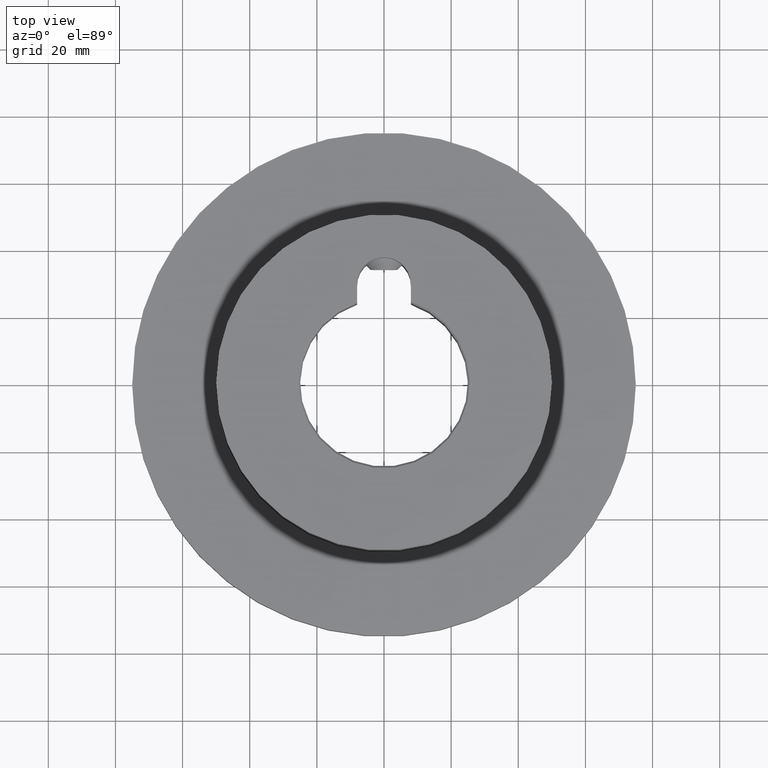
[diagram: clean part render]
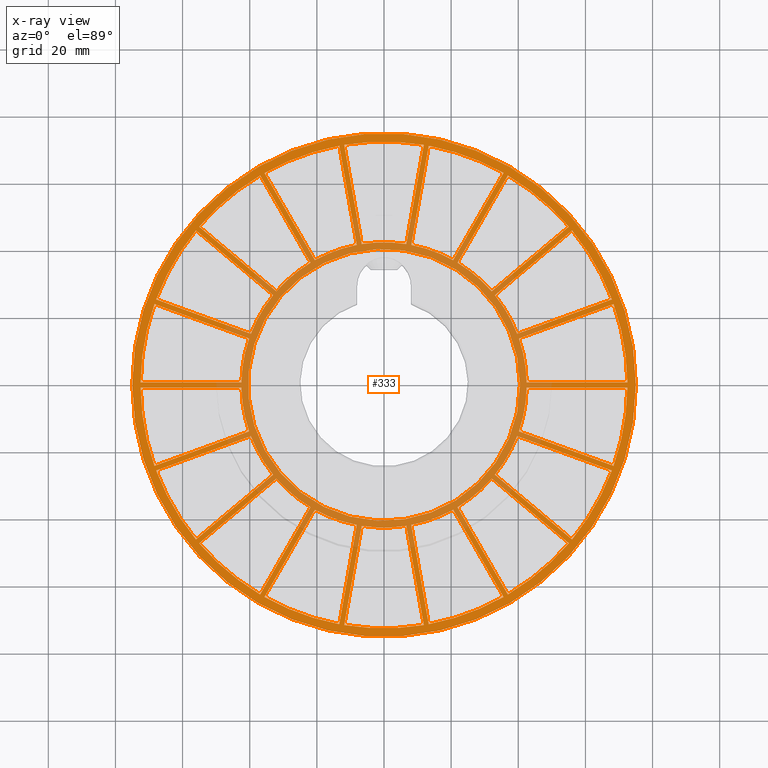
[diagram: x-ray — body ghosted, one internal face saturated and labeled with its STEP entity id]
A machine part, top view, then the same camera in x-ray: the body is ghosted and one INTERNAL B-rep face — a face not visible from any outside direction — is saturated and labeled: STEP entity #333.
In plain terms, the highlighted planar face has unit normal (0, 0, 1).
Its self-contained STEP definition (entity closure, byte-faithful):
#333 = ADVANCED_FACE( '', ( #550, #551, #552, #553, #554, #555, #556, #557, #558, #559, #560, #561, #562, #563, #564, #565, #566, #567, #568, #569 ), #570, .T. );
#550 = FACE_BOUND( '', #822, .T. );
#551 = FACE_BOUND( '', #823, .T. );
#552 = FACE_BOUND( '', #824, .T. );
#553 = FACE_BOUND( '', #825, .T. );
#554 = FACE_BOUND( '', #826, .T. );
#555 = FACE_BOUND( '', #827, .T. );
#556 = FACE_BOUND( '', #828, .T. );
#557 = FACE_BOUND( '', #829, .T. );
#558 = FACE_BOUND( '', #830, .T. );
#559 = FACE_OUTER_BOUND( '', #831, .T. );
#560 = FACE_BOUND( '', #832, .T. );
#561 = FACE_BOUND( '', #833, .T. );
#562 = FACE_BOUND( '', #834, .T. );
#563 = FACE_BOUND( '', #835, .T. );
#564 = FACE_BOUND( '', #836, .T. );
#565 = FACE_BOUND( '', #837, .T. );
#566 = FACE_BOUND( '', #838, .T. );
#567 = FACE_BOUND( '', #839, .T. );
#568 = FACE_BOUND( '', #840, .T. );
#569 = FACE_BOUND( '', #841, .T. );
#570 = PLANE( '', #842 );
#822 = EDGE_LOOP( '', ( #1215, #1216, #1217, #1218 ) );
#823 = EDGE_LOOP( '', ( #1219, #1220, #1221, #1222 ) );
#824 = EDGE_LOOP( '', ( #1223, #1224, #1225, #1226 ) );
#825 = EDGE_LOOP( '', ( #1227, #1228, #1229, #1230 ) );
#826 = EDGE_LOOP( '', ( #1231, #1232, #1233, #1234 ) );
#827 = EDGE_LOOP( '', ( #1235, #1236, #1237, #1238 ) );
#828 = EDGE_LOOP( '', ( #1239, #1240, #1241, #1242 ) );
#829 = EDGE_LOOP( '', ( #1243, #1244, #1245, #1246 ) );
#830 = EDGE_LOOP( '', ( #1247, #1248, #1249, #1250 ) );
#831 = EDGE_LOOP( '', ( #1251 ) );
#832 = EDGE_LOOP( '', ( #1252 ) );
#833 = EDGE_LOOP( '', ( #1253, #1254, #1255, #1256 ) );
#834 = EDGE_LOOP( '', ( #1257, #1258, #1259, #1260 ) );
#835 = EDGE_LOOP( '', ( #1261, #1262, #1263, #1264 ) );
#836 = EDGE_LOOP( '', ( #1265, #1266, #1267, #1268 ) );
#837 = EDGE_LOOP( '', ( #1269, #1270, #1271, #1272 ) );
#838 = EDGE_LOOP( '', ( #1273, #1274, #1275, #1276 ) );
#839 = EDGE_LOOP( '', ( #1277, #1278, #1279, #1280 ) );
#840 = EDGE_LOOP( '', ( #1281, #1282, #1283, #1284 ) );
#841 = EDGE_LOOP( '', ( #1285, #1286, #1287, #1288 ) );
#842 = AXIS2_PLACEMENT_3D( '', #1289, #1290, #1291 );
#1215 = ORIENTED_EDGE( '', *, *, #2010, .T. );
#1216 = ORIENTED_EDGE( '', *, *, #2011, .T. );
#1217 = ORIENTED_EDGE( '', *, *, #2012, .T. );
#1218 = ORIENTED_EDGE( '', *, *, #2013, .T. );
#1219 = ORIENTED_EDGE( '', *, *, #2014, .T. );
#1220 = ORIENTED_EDGE( '', *, *, #2015, .T. );
#1221 = ORIENTED_EDGE( '', *, *, #2016, .T. );
#1222 = ORIENTED_EDGE( '', *, *, #2017, .T. );
#1223 = ORIENTED_EDGE( '', *, *, #2018, .T. );
#1224 = ORIENTED_EDGE( '', *, *, #2019, .T. );
#1225 = ORIENTED_EDGE( '', *, *, #2020, .T. );
#1226 = ORIENTED_EDGE( '', *, *, #2021, .T. );
#1227 = ORIENTED_EDGE( '', *, *, #2022, .T. );
#1228 = ORIENTED_EDGE( '', *, *, #2023, .T. );
#1229 = ORIENTED_EDGE( '', *, *, #2024, .T. );
#1230 = ORIENTED_EDGE( '', *, *, #2025, .T. );
#1231 = ORIENTED_EDGE( '', *, *, #2026, .T. );
#1232 = ORIENTED_EDGE( '', *, *, #2027, .T. );
#1233 = ORIENTED_EDGE( '', *, *, #2028, .T. );
#1234 = ORIENTED_EDGE( '', *, *, #2029, .T. );
#1235 = ORIENTED_EDGE( '', *, *, #2030, .T. );
#1236 = ORIENTED_EDGE( '', *, *, #2031, .T. );
#1237 = ORIENTED_EDGE( '', *, *, #2032, .T. );
#1238 = ORIENTED_EDGE( '', *, *, #2033, .T. );
#1239 = ORIENTED_EDGE( '', *, *, #2034, .T. );
#1240 = ORIENTED_EDGE( '', *, *, #2035, .T. );
#1241 = ORIENTED_EDGE( '', *, *, #2036, .T. );
#1242 = ORIENTED_EDGE( '', *, *, #2037, .T. );
#1243 = ORIENTED_EDGE( '', *, *, #2038, .T. );
#1244 = ORIENTED_EDGE( '', *, *, #2039, .T. );
#1245 = ORIENTED_EDGE( '', *, *, #2040, .T. );
#1246 = ORIENTED_EDGE( '', *, *, #2041, .T. );
#1247 = ORIENTED_EDGE( '', *, *, #2042, .T. );
#1248 = ORIENTED_EDGE( '', *, *, #2043, .T. );
#1249 = ORIENTED_EDGE( '', *, *, #2044, .T. );
#1250 = ORIENTED_EDGE( '', *, *, #2045, .T. );
#1251 = ORIENTED_EDGE( '', *, *, #2004, .T. );
#1252 = ORIENTED_EDGE( '', *, *, #2046, .F. );
#1253 = ORIENTED_EDGE( '', *, *, #2047, .T. );
#1254 = ORIENTED_EDGE( '', *, *, #2048, .T. );
#1255 = ORIENTED_EDGE( '', *, *, #2049, .T. );
#1256 = ORIENTED_EDGE( '', *, *, #2050, .T. );
#1257 = ORIENTED_EDGE( '', *, *, #2051, .T. );
#1258 = ORIENTED_EDGE( '', *, *, #2052, .T. );
#1259 = ORIENTED_EDGE( '', *, *, #2053, .T. );
#1260 = ORIENTED_EDGE( '', *, *, #2054, .T. );
#1261 = ORIENTED_EDGE( '', *, *, #2055, .T. );
#1262 = ORIENTED_EDGE( '', *, *, #2056, .T. );
#1263 = ORIENTED_EDGE( '', *, *, #2057, .T. );
#1264 = ORIENTED_EDGE( '', *, *, #2058, .T. );
#1265 = ORIENTED_EDGE( '', *, *, #2059, .T. );
#1266 = ORIENTED_EDGE( '', *, *, #2060, .T. );
#1267 = ORIENTED_EDGE( '', *, *, #2061, .T. );
#1268 = ORIENTED_EDGE( '', *, *, #2062, .T. );
#1269 = ORIENTED_EDGE( '', *, *, #2063, .T. );
#1270 = ORIENTED_EDGE( '', *, *, #2064, .T. );
#1271 = ORIENTED_EDGE( '', *, *, #2065, .T. );
#1272 = ORIENTED_EDGE( '', *, *, #2066, .T. );
#1273 = ORIENTED_EDGE( '', *, *, #2067, .T. );
#1274 = ORIENTED_EDGE( '', *, *, #2068, .T. );
#1275 = ORIENTED_EDGE( '', *, *, #2069, .T. );
#1276 = ORIENTED_EDGE( '', *, *, #2070, .T. );
#1277 = ORIENTED_EDGE( '', *, *, #2071, .T. );
#1278 = ORIENTED_EDGE( '', *, *, #2072, .T. );
#1279 = ORIENTED_EDGE( '', *, *, #2073, .T. );
#1280 = ORIENTED_EDGE( '', *, *, #2074, .T. );
#1281 = ORIENTED_EDGE( '', *, *, #2075, .T. );
#1282 = ORIENTED_EDGE( '', *, *, #2076, .T. );
#1283 = ORIENTED_EDGE( '', *, *, #2077, .T. );
#1284 = ORIENTED_EDGE( '', *, *, #2078, .T. );
#1285 = ORIENTED_EDGE( '', *, *, #2007, .T. );
#1286 = ORIENTED_EDGE( '', *, *, #2079, .T. );
#1287 = ORIENTED_EDGE( '', *, *, #2080, .T. );
#1288 = ORIENTED_EDGE( '', *, *, #2009, .T. );
#1289 = CARTESIAN_POINT( '', ( 1.38777878078145E-014, 0.000000000000000, 8.00000000000000 ) );
#1290 = DIRECTION( '', ( 0.000000000000000, 0.000000000000000, 1.00000000000000 ) );
#1291 = DIRECTION( '', ( 1.00000000000000, 0.000000000000000, 0.000000000000000 ) );
#2004 = EDGE_CURVE( '', #2377, #2377, #2378, .T. );
#2007 = EDGE_CURVE( '', #2379, #2381, #2383, .T. );
#2009 = EDGE_CURVE( '', #2384, #2379, #2386, .T. );
#2010 = EDGE_CURVE( '', #2387, #2388, #2389, .T. );
#2011 = EDGE_CURVE( '', #2388, #2390, #2391, .F. );
#2012 = EDGE_CURVE( '', #2390, #2392, #2393, .T. );
#2013 = EDGE_CURVE( '', #2392, #2387, #2394, .T. );
#2014 = EDGE_CURVE( '', #2395, #2396, #2397, .T. );
#2015 = EDGE_CURVE( '', #2396, #2398, #2399, .F. );
#2016 = EDGE_CURVE( '', #2398, #2400, #2401, .T. );
#2017 = EDGE_CURVE( '', #2400, #2395, #2402, .T. );
#2018 = EDGE_CURVE( '', #2403, #2404, #2405, .T. );
#2019 = EDGE_CURVE( '', #2404, #2406, #2407, .F. );
#2020 = EDGE_CURVE( '', #2406, #2408, #2409, .T. );
#2021 = EDGE_CURVE( '', #2408, #2403, #2410, .T. );
#2022 = EDGE_CURVE( '', #2411, #2412, #2413, .T. );
#2023 = EDGE_CURVE( '', #2412, #2414, #2415, .F. );
#2024 = EDGE_CURVE( '', #2414, #2416, #2417, .T. );
#2025 = EDGE_CURVE( '', #2416, #2411, #2418, .T. );
#2026 = EDGE_CURVE( '', #2419, #2420, #2421, .T. );
#2027 = EDGE_CURVE( '', #2420, #2422, #2423, .F. );
#2028 = EDGE_CURVE( '', #2422, #2424, #2425, .T. );
#2029 = EDGE_CURVE( '', #2424, #2419, #2426, .T. );
#2030 = EDGE_CURVE( '', #2427, #2428, #2429, .T. );
#2031 = EDGE_CURVE( '', #2428, #2430, #2431, .F. );
#2032 = EDGE_CURVE( '', #2430, #2432, #2433, .T. );
#2033 = EDGE_CURVE( '', #2432, #2427, #2434, .T. );
#2034 = EDGE_CURVE( '', #2435, #2436, #2437, .T. );
#2035 = EDGE_CURVE( '', #2436, #2438, #2439, .F. );
#2036 = EDGE_CURVE( '', #2438, #2440, #2441, .T. );
#2037 = EDGE_CURVE( '', #2440, #2435, #2442, .T. );
#2038 = EDGE_CURVE( '', #2443, #2444, #2445, .T. );
#2039 = EDGE_CURVE( '', #2444, #2446, #2447, .F. );
#2040 = EDGE_CURVE( '', #2446, #2448, #2449, .T. );
#2041 = EDGE_CURVE( '', #2448, #2443, #2450, .T. );
#2042 = EDGE_CURVE( '', #2451, #2452, #2453, .T. );
#2043 = EDGE_CURVE( '', #2452, #2454, #2455, .F. );
#2044 = EDGE_CURVE( '', #2454, #2456, #2457, .T. );
#2045 = EDGE_CURVE( '', #2456, #2451, #2458, .T. );
#2046 = EDGE_CURVE( '', #2459, #2459, #2460, .T. );
#2047 = EDGE_CURVE( '', #2461, #2462, #2463, .T. );
#2048 = EDGE_CURVE( '', #2462, #2464, #2465, .F. );
#2049 = EDGE_CURVE( '', #2464, #2466, #2467, .T. );
#2050 = EDGE_CURVE( '', #2466, #2461, #2468, .T. );
#2051 = EDGE_CURVE( '', #2469, #2470, #2471, .T. );
#2052 = EDGE_CURVE( '', #2470, #2472, #2473, .F. );
#2053 = EDGE_CURVE( '', #2472, #2474, #2475, .T. );
#2054 = EDGE_CURVE( '', #2474, #2469, #2476, .T. );
#2055 = EDGE_CURVE( '', #2477, #2478, #2479, .T. );
#2056 = EDGE_CURVE( '', #2478, #2480, #2481, .F. );
#2057 = EDGE_CURVE( '', #2480, #2482, #2483, .T. );
#2058 = EDGE_CURVE( '', #2482, #2477, #2484, .T. );
#2059 = EDGE_CURVE( '', #2485, #2486, #2487, .T. );
#2060 = EDGE_CURVE( '', #2486, #2488, #2489, .F. );
#2061 = EDGE_CURVE( '', #2488, #2490, #2491, .T. );
#2062 = EDGE_CURVE( '', #2490, #2485, #2492, .T. );
#2063 = EDGE_CURVE( '', #2493, #2494, #2495, .T. );
#2064 = EDGE_CURVE( '', #2494, #2496, #2497, .F. );
#2065 = EDGE_CURVE( '', #2496, #2498, #2499, .T. );
#2066 = EDGE_CURVE( '', #2498, #2493, #2500, .T. );
#2067 = EDGE_CURVE( '', #2501, #2502, #2503, .T. );
#2068 = EDGE_CURVE( '', #2502, #2504, #2505, .F. );
#2069 = EDGE_CURVE( '', #2504, #2506, #2507, .T. );
#2070 = EDGE_CURVE( '', #2506, #2501, #2508, .T. );
#2071 = EDGE_CURVE( '', #2509, #2510, #2511, .T. );
#2072 = EDGE_CURVE( '', #2510, #2512, #2513, .F. );
#2073 = EDGE_CURVE( '', #2512, #2514, #2515, .T. );
#2074 = EDGE_CURVE( '', #2514, #2509, #2516, .T. );
#2075 = EDGE_CURVE( '', #2517, #2518, #2519, .T. );
#2076 = EDGE_CURVE( '', #2518, #2520, #2521, .F. );
#2077 = EDGE_CURVE( '', #2520, #2522, #2523, .T. );
#2078 = EDGE_CURVE( '', #2522, #2517, #2524, .T. );
#2079 = EDGE_CURVE( '', #2381, #2525, #2526, .F. );
#2080 = EDGE_CURVE( '', #2525, #2384, #2527, .T. );
#2377 = VERTEX_POINT( '', #3044 );
#2378 = CIRCLE( '', #3045, 75.0000000000000 );
#2379 = VERTEX_POINT( '', #3046 );
#2381 = VERTEX_POINT( '', #3049 );
#2383 = LINE( '', #3052, #3053 );
#2384 = VERTEX_POINT( '', #3054 );
#2386 = CIRCLE( '', #3057, 42.5000000000000 );
#2387 = VERTEX_POINT( '', #3058 );
#2388 = VERTEX_POINT( '', #3059 );
#2389 = LINE( '', #3060, #3061 );
#2390 = VERTEX_POINT( '', #3062 );
#2391 = CIRCLE( '', #3063, 72.5000000000000 );
#2392 = VERTEX_POINT( '', #3064 );
#2393 = LINE( '', #3065, #3066 );
#2394 = CIRCLE( '', #3067, 42.5000000000000 );
#2395 = VERTEX_POINT( '', #3068 );
#2396 = VERTEX_POINT( '', #3069 );
#2397 = LINE( '', #3070, #3071 );
#2398 = VERTEX_POINT( '', #3072 );
#2399 = CIRCLE( '', #3073, 72.5000000000000 );
#2400 = VERTEX_POINT( '', #3074 );
#2401 = LINE( '', #3075, #3076 );
#2402 = CIRCLE( '', #3077, 42.5000000000000 );
#2403 = VERTEX_POINT( '', #3078 );
#2404 = VERTEX_POINT( '', #3079 );
#2405 = LINE( '', #3080, #3081 );
#2406 = VERTEX_POINT( '', #3082 );
#2407 = CIRCLE( '', #3083, 72.5000000000000 );
#2408 = VERTEX_POINT( '', #3084 );
#2409 = LINE( '', #3085, #3086 );
#2410 = CIRCLE( '', #3087, 42.5000000000000 );
#2411 = VERTEX_POINT( '', #3088 );
#2412 = VERTEX_POINT( '', #3089 );
#2413 = LINE( '', #3090, #3091 );
#2414 = VERTEX_POINT( '', #3092 );
#2415 = CIRCLE( '', #3093, 72.5000000000000 );
#2416 = VERTEX_POINT( '', #3094 );
#2417 = LINE( '', #3095, #3096 );
#2418 = CIRCLE( '', #3097, 42.5000000000000 );
#2419 = VERTEX_POINT( '', #3098 );
#2420 = VERTEX_POINT( '', #3099 );
#2421 = LINE( '', #3100, #3101 );
#2422 = VERTEX_POINT( '', #3102 );
#2423 = CIRCLE( '', #3103, 72.5000000000000 );
#2424 = VERTEX_POINT( '', #3104 );
#2425 = LINE( '', #3105, #3106 );
#2426 = CIRCLE( '', #3107, 42.5000000000000 );
#2427 = VERTEX_POINT( '', #3108 );
#2428 = VERTEX_POINT( '', #3109 );
#2429 = LINE( '', #3110, #3111 );
#2430 = VERTEX_POINT( '', #3112 );
#2431 = CIRCLE( '', #3113, 72.5000000000000 );
#2432 = VERTEX_POINT( '', #3114 );
#2433 = LINE( '', #3115, #3116 );
#2434 = CIRCLE( '', #3117, 42.5000000000000 );
#2435 = VERTEX_POINT( '', #3118 );
#2436 = VERTEX_POINT( '', #3119 );
#2437 = LINE( '', #3120, #3121 );
#2438 = VERTEX_POINT( '', #3122 );
#2439 = CIRCLE( '', #3123, 72.5000000000000 );
#2440 = VERTEX_POINT( '', #3124 );
#2441 = LINE( '', #3125, #3126 );
#2442 = CIRCLE( '', #3127, 42.5000000000000 );
#2443 = VERTEX_POINT( '', #3128 );
#2444 = VERTEX_POINT( '', #3129 );
#2445 = LINE( '', #3130, #3131 );
#2446 = VERTEX_POINT( '', #3132 );
#2447 = CIRCLE( '', #3133, 72.5000000000000 );
#2448 = VERTEX_POINT( '', #3134 );
#2449 = LINE( '', #3135, #3136 );
#2450 = CIRCLE( '', #3137, 42.5000000000000 );
#2451 = VERTEX_POINT( '', #3138 );
#2452 = VERTEX_POINT( '', #3139 );
#2453 = LINE( '', #3140, #3141 );
#2454 = VERTEX_POINT( '', #3142 );
#2455 = CIRCLE( '', #3143, 72.5000000000000 );
#2456 = VERTEX_POINT( '', #3144 );
#2457 = LINE( '', #3145, #3146 );
#2458 = CIRCLE( '', #3147, 42.5000000000000 );
#2459 = VERTEX_POINT( '', #3148 );
#2460 = CIRCLE( '', #3149, 40.5000000000000 );
#2461 = VERTEX_POINT( '', #3150 );
#2462 = VERTEX_POINT( '', #3151 );
#2463 = LINE( '', #3152, #3153 );
#2464 = VERTEX_POINT( '', #3154 );
#2465 = CIRCLE( '', #3155, 72.5000000000000 );
#2466 = VERTEX_POINT( '', #3156 );
#2467 = LINE( '', #3157, #3158 );
#2468 = CIRCLE( '', #3159, 42.5000000000000 );
#2469 = VERTEX_POINT( '', #3160 );
#2470 = VERTEX_POINT( '', #3161 );
#2471 = LINE( '', #3162, #3163 );
#2472 = VERTEX_POINT( '', #3164 );
#2473 = CIRCLE( '', #3165, 72.5000000000000 );
#2474 = VERTEX_POINT( '', #3166 );
#2475 = LINE( '', #3167, #3168 );
#2476 = CIRCLE( '', #3169, 42.5000000000000 );
#2477 = VERTEX_POINT( '', #3170 );
#2478 = VERTEX_POINT( '', #3171 );
#2479 = LINE( '', #3172, #3173 );
#2480 = VERTEX_POINT( '', #3174 );
#2481 = CIRCLE( '', #3175, 72.5000000000000 );
#2482 = VERTEX_POINT( '', #3176 );
#2483 = LINE( '', #3177, #3178 );
#2484 = CIRCLE( '', #3179, 42.5000000000000 );
#2485 = VERTEX_POINT( '', #3180 );
#2486 = VERTEX_POINT( '', #3181 );
#2487 = LINE( '', #3182, #3183 );
#2488 = VERTEX_POINT( '', #3184 );
#2489 = CIRCLE( '', #3185, 72.5000000000000 );
#2490 = VERTEX_POINT( '', #3186 );
#2491 = LINE( '', #3187, #3188 );
#2492 = CIRCLE( '', #3189, 42.5000000000000 );
#2493 = VERTEX_POINT( '', #3190 );
#2494 = VERTEX_POINT( '', #3191 );
#2495 = LINE( '', #3192, #3193 );
#2496 = VERTEX_POINT( '', #3194 );
#2497 = CIRCLE( '', #3195, 72.5000000000000 );
#2498 = VERTEX_POINT( '', #3196 );
#2499 = LINE( '', #3197, #3198 );
#2500 = CIRCLE( '', #3199, 42.5000000000000 );
#2501 = VERTEX_POINT( '', #3200 );
#2502 = VERTEX_POINT( '', #3201 );
#2503 = LINE( '', #3202, #3203 );
#2504 = VERTEX_POINT( '', #3204 );
#2505 = CIRCLE( '', #3205, 72.5000000000000 );
#2506 = VERTEX_POINT( '', #3206 );
#2507 = LINE( '', #3207, #3208 );
#2508 = CIRCLE( '', #3209, 42.5000000000000 );
#2509 = VERTEX_POINT( '', #3210 );
#2510 = VERTEX_POINT( '', #3211 );
#2511 = LINE( '', #3212, #3213 );
#2512 = VERTEX_POINT( '', #3214 );
#2513 = CIRCLE( '', #3215, 72.5000000000000 );
#2514 = VERTEX_POINT( '', #3216 );
#2515 = LINE( '', #3217, #3218 );
#2516 = CIRCLE( '', #3219, 42.5000000000000 );
#2517 = VERTEX_POINT( '', #3220 );
#2518 = VERTEX_POINT( '', #3221 );
#2519 = LINE( '', #3222, #3223 );
#2520 = VERTEX_POINT( '', #3224 );
#2521 = CIRCLE( '', #3225, 72.5000000000000 );
#2522 = VERTEX_POINT( '', #3226 );
#2523 = LINE( '', #3227, #3228 );
#2524 = CIRCLE( '', #3229, 42.5000000000000 );
#2525 = VERTEX_POINT( '', #3230 );
#2526 = CIRCLE( '', #3231, 72.5000000000000 );
#2527 = LINE( '', #3232, #3233 );
#3044 = CARTESIAN_POINT( '', ( 75.0000000000000, 0.000000000000000, 8.00000000000000 ) );
#3045 = AXIS2_PLACEMENT_3D( '', #3691, #3692, #3693 );
#3046 = CARTESIAN_POINT( '', ( 42.4933818376462, -0.750000000000002, 8.00000000000001 ) );
#3049 = CARTESIAN_POINT( '', ( 72.4961205858630, -0.749999999999990, 8.00000000000000 ) );
#3052 = CARTESIAN_POINT( '', ( 1.39610545346613E-014, -0.749999999999998, 8.00000000000000 ) );
#3053 = VECTOR( '', #3696, 1000.00000000000 );
#3054 = CARTESIAN_POINT( '', ( 40.1872324525683, -13.8288230809147, 8.00000000000001 ) );
#3057 = AXIS2_PLACEMENT_3D( '', #3698, #3699, #3700 );
#3058 = CARTESIAN_POINT( '', ( 39.6742022375798, -15.2383620120936, 8.00000000000001 ) );
#3059 = CARTESIAN_POINT( '', ( 67.8675544426466, -25.4999030189213, 8.00000000000000 ) );
#3060 = CARTESIAN_POINT( '', ( -0.256515107494240, -0.704769465589437, 8.00000000000000 ) );
#3061 = VECTOR( '', #3701, 1000.00000000000 );
#3062 = CARTESIAN_POINT( '', ( 56.0173410297487, -46.0250747305948, 8.00000000000001 ) );
#3063 = AXIS2_PLACEMENT_3D( '', #3702, #3703, #3704 );
#3064 = CARTESIAN_POINT( '', ( 33.0339097333267, -26.7396860065788, 8.00000000000001 ) );
#3065 = CARTESIAN_POINT( '', ( 0.482090707264914, 0.574533332339229, 8.00000000000000 ) );
#3066 = VECTOR( '', #3705, 1000.00000000000 );
#3067 = AXIS2_PLACEMENT_3D( '', #3706, #3707, #3708 );
#3068 = CARTESIAN_POINT( '', ( 20.5971718659848, -37.1753481641139, 8.00000000000001 ) );
#3069 = CARTESIAN_POINT( '', ( 35.5985412400932, -63.1584821031774, 8.00000000000000 ) );
#3070 = CARTESIAN_POINT( '', ( -0.649519052838328, -0.375000000000007, 8.00000000000000 ) );
#3071 = VECTOR( '', #3709, 1000.00000000000 );
#3072 = CARTESIAN_POINT( '', ( 13.3274250424163, -71.2645054830157, 8.00000000000001 ) );
#3073 = AXIS2_PLACEMENT_3D( '', #3710, #3711, #3712 );
#3074 = CARTESIAN_POINT( '', ( 8.11750413377144, -41.7175757521719, 8.00000000000001 ) );
#3075 = CARTESIAN_POINT( '', ( 0.738605814759155, 0.130236133250195, 8.00000000000000 ) );
#3076 = VECTOR( '', #3713, 1000.00000000000 );
#3077 = AXIS2_PLACEMENT_3D( '', #3714, #3715, #3716 );
#3078 = CARTESIAN_POINT( '', ( -8.11750413377148, -41.7175757521719, 8.00000000000001 ) );
#3079 = CARTESIAN_POINT( '', ( -13.3274250424163, -71.2645054830156, 8.00000000000000 ) );
#3080 = CARTESIAN_POINT( '', ( -0.738605814759154, 0.130236133250200, 8.00000000000000 ) );
#3081 = VECTOR( '', #3717, 1000.00000000000 );
#3082 = CARTESIAN_POINT( '', ( -35.5985412400932, -63.1584821031774, 8.00000000000001 ) );
#3083 = AXIS2_PLACEMENT_3D( '', #3718, #3719, #3720 );
#3084 = CARTESIAN_POINT( '', ( -20.5971718659848, -37.1753481641139, 8.00000000000001 ) );
#3085 = CARTESIAN_POINT( '', ( 0.649519052838334, -0.374999999999995, 8.00000000000000 ) );
#3086 = VECTOR( '', #3721, 1000.00000000000 );
#3087 = AXIS2_PLACEMENT_3D( '', #3722, #3723, #3724 );
#3088 = CARTESIAN_POINT( '', ( -33.0339097333267, -26.7396860065788, 8.00000000000001 ) );
#3089 = CARTESIAN_POINT( '', ( -56.0173410297486, -46.0250747305948, 8.00000000000000 ) );
#3090 = CARTESIAN_POINT( '', ( -0.482090707264896, 0.574533332339239, 8.00000000000000 ) );
#3091 = VECTOR( '', #3725, 1000.00000000000 );
#3092 = CARTESIAN_POINT( '', ( -67.8675544426467, -25.4999030189213, 8.00000000000001 ) );
#3093 = AXIS2_PLACEMENT_3D( '', #3726, #3727, #3728 );
#3094 = CARTESIAN_POINT( '', ( -39.6742022375798, -15.2383620120936, 8.00000000000001 ) );
#3095 = CARTESIAN_POINT( '', ( 0.256515107494262, -0.704769465589422, 8.00000000000000 ) );
#3096 = VECTOR( '', #3729, 1000.00000000000 );
#3097 = AXIS2_PLACEMENT_3D( '', #3730, #3731, #3732 );
#3098 = CARTESIAN_POINT( '', ( -42.4933818376462, 0.750000000000015, 8.00000000000001 ) );
#3099 = CARTESIAN_POINT( '', ( -72.4961205858630, 0.750000000000014, 8.00000000000000 ) );
#3100 = CARTESIAN_POINT( '', ( 1.40443212615082E-014, 0.749999999999998, 8.00000000000000 ) );
#3101 = VECTOR( '', #3733, 1000.00000000000 );
#3102 = CARTESIAN_POINT( '', ( -68.3805846576352, 24.0903640877424, 8.00000000000001 ) );
#3103 = AXIS2_PLACEMENT_3D( '', #3734, #3735, #3736 );
#3104 = CARTESIAN_POINT( '', ( -40.1872324525683, 13.8288230809147, 8.00000000000001 ) );
#3105 = CARTESIAN_POINT( '', ( -0.256515107494239, -0.704769465589435, 8.00000000000000 ) );
#3106 = VECTOR( '', #3737, 1000.00000000000 );
#3107 = AXIS2_PLACEMENT_3D( '', #3738, #3739, #3740 );
#3108 = CARTESIAN_POINT( '', ( -32.0697283187969, 27.8887526712573, 8.00000000000001 ) );
#3109 = CARTESIAN_POINT( '', ( -55.0531596152188, 47.1741413952733, 8.00000000000000 ) );
#3110 = CARTESIAN_POINT( '', ( 0.482090707264912, 0.574533332339226, 8.00000000000000 ) );
#3111 = VECTOR( '', #3741, 1000.00000000000 );
#3112 = CARTESIAN_POINT( '', ( -36.8975793457699, 62.4084821031774, 8.00000000000001 ) );
#3113 = AXIS2_PLACEMENT_3D( '', #3742, #3743, #3744 );
#3114 = CARTESIAN_POINT( '', ( -21.8962099716614, 36.4253481641139, 8.00000000000001 ) );
#3115 = CARTESIAN_POINT( '', ( -0.649519052838334, -0.375000000000011, 8.00000000000000 ) );
#3116 = VECTOR( '', #3745, 1000.00000000000 );
#3117 = AXIS2_PLACEMENT_3D( '', #3746, #3747, #3748 );
#3118 = CARTESIAN_POINT( '', ( -6.64029250425313, 41.9780480186723, 8.00000000000001 ) );
#3119 = CARTESIAN_POINT( '', ( -11.8502134128980, 71.5249777495160, 8.00000000000000 ) );
#3120 = CARTESIAN_POINT( '', ( 0.738605814759156, 0.130236133250195, 8.00000000000000 ) );
#3121 = VECTOR( '', #3749, 1000.00000000000 );
#3122 = CARTESIAN_POINT( '', ( 11.8502134128980, 71.5249777495161, 8.00000000000001 ) );
#3123 = AXIS2_PLACEMENT_3D( '', #3750, #3751, #3752 );
#3124 = CARTESIAN_POINT( '', ( 6.64029250425315, 41.9780480186723, 8.00000000000001 ) );
#3125 = CARTESIAN_POINT( '', ( -0.738605814759157, 0.130236133250200, 8.00000000000000 ) );
#3126 = VECTOR( '', #3753, 1000.00000000000 );
#3127 = AXIS2_PLACEMENT_3D( '', #3754, #3755, #3756 );
#3128 = CARTESIAN_POINT( '', ( 21.8962099716614, 36.4253481641139, 8.00000000000001 ) );
#3129 = CARTESIAN_POINT( '', ( 36.8975793457698, 62.4084821031774, 8.00000000000000 ) );
#3130 = CARTESIAN_POINT( '', ( 0.649519052838334, -0.374999999999995, 8.00000000000000 ) );
#3131 = VECTOR( '', #3757, 1000.00000000000 );
#3132 = CARTESIAN_POINT( '', ( 55.0531596152189, 47.1741413952733, 8.00000000000001 ) );
#3133 = AXIS2_PLACEMENT_3D( '', #3758, #3759, #3760 );
#3134 = CARTESIAN_POINT( '', ( 32.0697283187969, 27.8887526712572, 8.00000000000001 ) );
#3135 = CARTESIAN_POINT( '', ( -0.482090707264900, 0.574533332339245, 8.00000000000000 ) );
#3136 = VECTOR( '', #3761, 1000.00000000000 );
#3137 = AXIS2_PLACEMENT_3D( '', #3762, #3763, #3764 );
#3138 = CARTESIAN_POINT( '', ( 40.1872324525683, 13.8288230809147, 8.00000000000001 ) );
#3139 = CARTESIAN_POINT( '', ( 68.3805846576351, 24.0903640877424, 8.00000000000000 ) );
#3140 = CARTESIAN_POINT( '', ( 0.256515107494263, -0.704769465589426, 8.00000000000000 ) );
#3141 = VECTOR( '', #3765, 1000.00000000000 );
#3142 = CARTESIAN_POINT( '', ( 72.4961205858631, 0.750000000000000, 8.00000000000001 ) );
#3143 = AXIS2_PLACEMENT_3D( '', #3766, #3767, #3768 );
#3144 = CARTESIAN_POINT( '', ( 42.4933818376462, 0.750000000000000, 8.00000000000001 ) );
#3145 = CARTESIAN_POINT( '', ( 1.38777878078145E-014, 0.750000000000000, 8.00000000000000 ) );
#3146 = VECTOR( '', #3769, 1000.00000000000 );
#3147 = AXIS2_PLACEMENT_3D( '', #3770, #3771, #3772 );
#3148 = CARTESIAN_POINT( '', ( 40.5000000000000, 0.000000000000000, 8.00000000000000 ) );
#3149 = AXIS2_PLACEMENT_3D( '', #3773, #3774, #3775 );
#3150 = CARTESIAN_POINT( '', ( 33.0339097333267, 26.7396860065788, 8.00000000000001 ) );
#3151 = CARTESIAN_POINT( '', ( 56.0173410297486, 46.0250747305948, 8.00000000000000 ) );
#3152 = CARTESIAN_POINT( '', ( 0.482090707264912, -0.574533332339226, 8.00000000000000 ) );
#3153 = VECTOR( '', #3776, 1000.00000000000 );
#3154 = CARTESIAN_POINT( '', ( 67.8675544426467, 25.4999030189213, 8.00000000000001 ) );
#3155 = AXIS2_PLACEMENT_3D( '', #3777, #3778, #3779 );
#3156 = CARTESIAN_POINT( '', ( 39.6742022375798, 15.2383620120936, 8.00000000000001 ) );
#3157 = CARTESIAN_POINT( '', ( -0.256515107494239, 0.704769465589435, 8.00000000000000 ) );
#3158 = VECTOR( '', #3780, 1000.00000000000 );
#3159 = AXIS2_PLACEMENT_3D( '', #3781, #3782, #3783 );
#3160 = CARTESIAN_POINT( '', ( 8.11750413377147, 41.7175757521719, 8.00000000000001 ) );
#3161 = CARTESIAN_POINT( '', ( 13.3274250424163, 71.2645054830156, 8.00000000000000 ) );
#3162 = CARTESIAN_POINT( '', ( 0.738605814759152, -0.130236133250195, 8.00000000000000 ) );
#3163 = VECTOR( '', #3784, 1000.00000000000 );
#3164 = CARTESIAN_POINT( '', ( 35.5985412400932, 63.1584821031774, 8.00000000000001 ) );
#3165 = AXIS2_PLACEMENT_3D( '', #3785, #3786, #3787 );
#3166 = CARTESIAN_POINT( '', ( 20.5971718659848, 37.1753481641139, 8.00000000000001 ) );
#3167 = CARTESIAN_POINT( '', ( -0.649519052838331, 0.375000000000009, 8.00000000000000 ) );
#3168 = VECTOR( '', #3788, 1000.00000000000 );
#3169 = AXIS2_PLACEMENT_3D( '', #3789, #3790, #3791 );
#3170 = CARTESIAN_POINT( '', ( -20.5971718659848, 37.1753481641139, 8.00000000000001 ) );
#3171 = CARTESIAN_POINT( '', ( -35.5985412400932, 63.1584821031774, 8.00000000000000 ) );
#3172 = CARTESIAN_POINT( '', ( 0.649519052838335, 0.374999999999995, 8.00000000000000 ) );
#3173 = VECTOR( '', #3792, 1000.00000000000 );
#3174 = CARTESIAN_POINT( '', ( -13.3274250424163, 71.2645054830157, 8.00000000000001 ) );
#3175 = AXIS2_PLACEMENT_3D( '', #3793, #3794, #3795 );
#3176 = CARTESIAN_POINT( '', ( -8.11750413377145, 41.7175757521719, 8.00000000000001 ) );
#3177 = CARTESIAN_POINT( '', ( -0.738605814759155, -0.130236133250200, 8.00000000000000 ) );
#3178 = VECTOR( '', #3796, 1000.00000000000 );
#3179 = AXIS2_PLACEMENT_3D( '', #3797, #3798, #3799 );
#3180 = CARTESIAN_POINT( '', ( -39.6742022375798, 15.2383620120936, 8.00000000000001 ) );
#3181 = CARTESIAN_POINT( '', ( -67.8675544426466, 25.4999030189213, 8.00000000000000 ) );
#3182 = CARTESIAN_POINT( '', ( 0.256515107494265, 0.704769465589430, 8.00000000000000 ) );
#3183 = VECTOR( '', #3800, 1000.00000000000 );
#3184 = CARTESIAN_POINT( '', ( -56.0173410297487, 46.0250747305948, 8.00000000000001 ) );
#3185 = AXIS2_PLACEMENT_3D( '', #3801, #3802, #3803 );
#3186 = CARTESIAN_POINT( '', ( -33.0339097333267, 26.7396860065788, 8.00000000000001 ) );
#3187 = CARTESIAN_POINT( '', ( -0.482090707264896, -0.574533332339239, 8.00000000000000 ) );
#3188 = VECTOR( '', #3804, 1000.00000000000 );
#3189 = AXIS2_PLACEMENT_3D( '', #3805, #3806, #3807 );
#3190 = CARTESIAN_POINT( '', ( -40.1872324525683, -13.8288230809147, 8.00000000000001 ) );
#3191 = CARTESIAN_POINT( '', ( -68.3805846576351, -24.0903640877424, 8.00000000000000 ) );
#3192 = CARTESIAN_POINT( '', ( -0.256515107494239, 0.704769465589435, 8.00000000000000 ) );
#3193 = VECTOR( '', #3808, 1000.00000000000 );
#3194 = CARTESIAN_POINT( '', ( -72.4961205858631, -0.749999999999991, 8.00000000000001 ) );
#3195 = AXIS2_PLACEMENT_3D( '', #3809, #3810, #3811 );
#3196 = CARTESIAN_POINT( '', ( -42.4933818376462, -0.749999999999995, 8.00000000000001 ) );
#3197 = CARTESIAN_POINT( '', ( 1.37859392978784E-014, -0.750000000000000, 8.00000000000000 ) );
#3198 = VECTOR( '', #3812, 1000.00000000000 );
#3199 = AXIS2_PLACEMENT_3D( '', #3813, #3814, #3815 );
#3200 = CARTESIAN_POINT( '', ( -21.8962099716614, -36.4253481641139, 8.00000000000001 ) );
#3201 = CARTESIAN_POINT( '', ( -36.8975793457698, -62.4084821031774, 8.00000000000000 ) );
#3202 = CARTESIAN_POINT( '', ( -0.649519052838328, 0.375000000000007, 8.00000000000000 ) );
#3203 = VECTOR( '', #3816, 1000.00000000000 );
#3204 = CARTESIAN_POINT( '', ( -55.0531596152189, -47.1741413952733, 8.00000000000001 ) );
#3205 = AXIS2_PLACEMENT_3D( '', #3817, #3818, #3819 );
#3206 = CARTESIAN_POINT( '', ( -32.0697283187969, -27.8887526712572, 8.00000000000001 ) );
#3207 = CARTESIAN_POINT( '', ( 0.482090707264914, -0.574533332339229, 8.00000000000000 ) );
#3208 = VECTOR( '', #3820, 1000.00000000000 );
#3209 = AXIS2_PLACEMENT_3D( '', #3821, #3822, #3823 );
#3210 = CARTESIAN_POINT( '', ( 6.64029250425313, -41.9780480186723, 8.00000000000001 ) );
#3211 = CARTESIAN_POINT( '', ( 11.8502134128980, -71.5249777495160, 8.00000000000000 ) );
#3212 = CARTESIAN_POINT( '', ( -0.738605814759156, -0.130236133250200, 8.00000000000000 ) );
#3213 = VECTOR( '', #3824, 1000.00000000000 );
#3214 = CARTESIAN_POINT( '', ( -11.8502134128980, -71.5249777495161, 8.00000000000001 ) );
#3215 = AXIS2_PLACEMENT_3D( '', #3825, #3826, #3827 );
#3216 = CARTESIAN_POINT( '', ( -6.64029250425314, -41.9780480186723, 8.00000000000001 ) );
#3217 = CARTESIAN_POINT( '', ( 0.738605814759157, -0.130236133250195, 8.00000000000000 ) );
#3218 = VECTOR( '', #3828, 1000.00000000000 );
#3219 = AXIS2_PLACEMENT_3D( '', #3829, #3830, #3831 );
#3220 = CARTESIAN_POINT( '', ( 32.0697283187969, -27.8887526712572, 8.00000000000001 ) );
#3221 = CARTESIAN_POINT( '', ( 55.0531596152188, -47.1741413952732, 8.00000000000000 ) );
#3222 = CARTESIAN_POINT( '', ( -0.482090707264891, -0.574533332339234, 8.00000000000000 ) );
#3223 = VECTOR( '', #3832, 1000.00000000000 );
#3224 = CARTESIAN_POINT( '', ( 36.8975793457699, -62.4084821031774, 8.00000000000001 ) );
#3225 = AXIS2_PLACEMENT_3D( '', #3833, #3834, #3835 );
#3226 = CARTESIAN_POINT( '', ( 21.8962099716614, -36.4253481641139, 8.00000000000001 ) );
#3227 = CARTESIAN_POINT( '', ( 0.649519052838331, 0.374999999999993, 8.00000000000000 ) );
#3228 = VECTOR( '', #3836, 1000.00000000000 );
#3229 = AXIS2_PLACEMENT_3D( '', #3837, #3838, #3839 );
#3230 = CARTESIAN_POINT( '', ( 68.3805846576352, -24.0903640877424, 8.00000000000001 ) );
#3231 = AXIS2_PLACEMENT_3D( '', #3840, #3841, #3842 );
#3232 = CARTESIAN_POINT( '', ( 0.256515107494264, 0.704769465589429, 8.00000000000000 ) );
#3233 = VECTOR( '', #3843, 1000.00000000000 );
#3691 = CARTESIAN_POINT( '', ( 1.38777878078145E-014, 0.000000000000000, 8.00000000000000 ) );
#3692 = DIRECTION( '', ( 0.000000000000000, 0.000000000000000, 1.00000000000000 ) );
#3693 = DIRECTION( '', ( 1.00000000000000, 0.000000000000000, 0.000000000000000 ) );
#3696 = DIRECTION( '', ( 1.00000000000000, 1.11022302462516E-016, -0.000000000000000 ) );
#3698 = CARTESIAN_POINT( '', ( 0.000000000000000, 0.000000000000000, 8.00000000000001 ) );
#3699 = DIRECTION( '', ( 0.000000000000000, 0.000000000000000, 1.00000000000000 ) );
#3700 = DIRECTION( '', ( 1.00000000000000, 0.000000000000000, -0.000000000000000 ) );
#3701 = DIRECTION( '', ( 0.939692620785908, -0.342020143325669, 0.000000000000000 ) );
#3702 = CARTESIAN_POINT( '', ( 0.000000000000000, 0.000000000000000, 8.00000000000001 ) );
#3703 = DIRECTION( '', ( 0.000000000000000, 0.000000000000000, 1.00000000000000 ) );
#3704 = DIRECTION( '', ( 1.00000000000000, 0.000000000000000, -0.000000000000000 ) );
#3705 = DIRECTION( '', ( -0.766044443118978, 0.642787609686539, 0.000000000000000 ) );
#3706 = CARTESIAN_POINT( '', ( 0.000000000000000, 0.000000000000000, 8.00000000000001 ) );
#3707 = DIRECTION( '', ( 0.000000000000000, 0.000000000000000, 1.00000000000000 ) );
#3708 = DIRECTION( '', ( 1.00000000000000, 0.000000000000000, -0.000000000000000 ) );
#3709 = DIRECTION( '', ( 0.500000000000000, -0.866025403784439, 0.000000000000000 ) );
#3710 = CARTESIAN_POINT( '', ( 0.000000000000000, 0.000000000000000, 8.00000000000001 ) );
#3711 = DIRECTION( '', ( 0.000000000000000, 0.000000000000000, 1.00000000000000 ) );
#3712 = DIRECTION( '', ( 1.00000000000000, 0.000000000000000, -0.000000000000000 ) );
#3713 = DIRECTION( '', ( -0.173648177666930, 0.984807753012208, 0.000000000000000 ) );
#3714 = CARTESIAN_POINT( '', ( 0.000000000000000, 0.000000000000000, 8.00000000000001 ) );
#3715 = DIRECTION( '', ( 0.000000000000000, 0.000000000000000, 1.00000000000000 ) );
#3716 = DIRECTION( '', ( 1.00000000000000, 0.000000000000000, -0.000000000000000 ) );
#3717 = DIRECTION( '', ( -0.173648177666931, -0.984807753012208, 0.000000000000000 ) );
#3718 = CARTESIAN_POINT( '', ( 0.000000000000000, 0.000000000000000, 8.00000000000001 ) );
#3719 = DIRECTION( '', ( 0.000000000000000, 0.000000000000000, 1.00000000000000 ) );
#3720 = DIRECTION( '', ( 1.00000000000000, 0.000000000000000, -0.000000000000000 ) );
#3721 = DIRECTION( '', ( 0.500000000000000, 0.866025403784438, 0.000000000000000 ) );
#3722 = CARTESIAN_POINT( '', ( 0.000000000000000, 0.000000000000000, 8.00000000000001 ) );
#3723 = DIRECTION( '', ( 0.000000000000000, 0.000000000000000, 1.00000000000000 ) );
#3724 = DIRECTION( '', ( 1.00000000000000, 0.000000000000000, -0.000000000000000 ) );
#3725 = DIRECTION( '', ( -0.766044443118978, -0.642787609686539, 0.000000000000000 ) );
#3726 = CARTESIAN_POINT( '', ( 0.000000000000000, 0.000000000000000, 8.00000000000001 ) );
#3727 = DIRECTION( '', ( 0.000000000000000, 0.000000000000000, 1.00000000000000 ) );
#3728 = DIRECTION( '', ( 1.00000000000000, 0.000000000000000, -0.000000000000000 ) );
#3729 = DIRECTION( '', ( 0.939692620785908, 0.342020143325669, -0.000000000000000 ) );
#3730 = CARTESIAN_POINT( '', ( 0.000000000000000, 0.000000000000000, 8.00000000000001 ) );
#3731 = DIRECTION( '', ( 0.000000000000000, 0.000000000000000, 1.00000000000000 ) );
#3732 = DIRECTION( '', ( 1.00000000000000, 0.000000000000000, -0.000000000000000 ) );
#3733 = DIRECTION( '', ( -1.00000000000000, 2.22044604925031E-016, 0.000000000000000 ) );
#3734 = CARTESIAN_POINT( '', ( 0.000000000000000, 0.000000000000000, 8.00000000000001 ) );
#3735 = DIRECTION( '', ( 0.000000000000000, 0.000000000000000, 1.00000000000000 ) );
#3736 = DIRECTION( '', ( 1.00000000000000, 0.000000000000000, -0.000000000000000 ) );
#3737 = DIRECTION( '', ( 0.939692620785908, -0.342020143325669, 0.000000000000000 ) );
#3738 = CARTESIAN_POINT( '', ( 0.000000000000000, 0.000000000000000, 8.00000000000001 ) );
#3739 = DIRECTION( '', ( 0.000000000000000, 0.000000000000000, 1.00000000000000 ) );
#3740 = DIRECTION( '', ( 1.00000000000000, 0.000000000000000, -0.000000000000000 ) );
#3741 = DIRECTION( '', ( -0.766044443118978, 0.642787609686540, 0.000000000000000 ) );
#3742 = CARTESIAN_POINT( '', ( 0.000000000000000, 0.000000000000000, 8.00000000000001 ) );
#3743 = DIRECTION( '', ( 0.000000000000000, 0.000000000000000, 1.00000000000000 ) );
#3744 = DIRECTION( '', ( 1.00000000000000, 0.000000000000000, -0.000000000000000 ) );
#3745 = DIRECTION( '', ( 0.500000000000000, -0.866025403784439, 0.000000000000000 ) );
#3746 = CARTESIAN_POINT( '', ( 0.000000000000000, 0.000000000000000, 8.00000000000001 ) );
#3747 = DIRECTION( '', ( 0.000000000000000, 0.000000000000000, 1.00000000000000 ) );
#3748 = DIRECTION( '', ( 1.00000000000000, 0.000000000000000, -0.000000000000000 ) );
#3749 = DIRECTION( '', ( -0.173648177666930, 0.984807753012208, 0.000000000000000 ) );
#3750 = CARTESIAN_POINT( '', ( 0.000000000000000, 0.000000000000000, 8.00000000000001 ) );
#3751 = DIRECTION( '', ( 0.000000000000000, 0.000000000000000, 1.00000000000000 ) );
#3752 = DIRECTION( '', ( 1.00000000000000, 0.000000000000000, -0.000000000000000 ) );
#3753 = DIRECTION( '', ( -0.173648177666930, -0.984807753012208, 0.000000000000000 ) );
#3754 = CARTESIAN_POINT( '', ( 0.000000000000000, 0.000000000000000, 8.00000000000001 ) );
#3755 = DIRECTION( '', ( 0.000000000000000, 0.000000000000000, 1.00000000000000 ) );
#3756 = DIRECTION( '', ( 1.00000000000000, 0.000000000000000, -0.000000000000000 ) );
#3757 = DIRECTION( '', ( 0.500000000000000, 0.866025403784439, -0.000000000000000 ) );
#3758 = CARTESIAN_POINT( '', ( 0.000000000000000, 0.000000000000000, 8.00000000000001 ) );
#3759 = DIRECTION( '', ( 0.000000000000000, 0.000000000000000, 1.00000000000000 ) );
#3760 = DIRECTION( '', ( 1.00000000000000, 0.000000000000000, -0.000000000000000 ) );
#3761 = DIRECTION( '', ( -0.766044443118978, -0.642787609686539, 0.000000000000000 ) );
#3762 = CARTESIAN_POINT( '', ( 0.000000000000000, 0.000000000000000, 8.00000000000001 ) );
#3763 = DIRECTION( '', ( 0.000000000000000, 0.000000000000000, 1.00000000000000 ) );
#3764 = DIRECTION( '', ( 1.00000000000000, 0.000000000000000, -0.000000000000000 ) );
#3765 = DIRECTION( '', ( 0.939692620785908, 0.342020143325669, -0.000000000000000 ) );
#3766 = CARTESIAN_POINT( '', ( 0.000000000000000, 0.000000000000000, 8.00000000000001 ) );
#3767 = DIRECTION( '', ( 0.000000000000000, 0.000000000000000, 1.00000000000000 ) );
#3768 = DIRECTION( '', ( 1.00000000000000, 0.000000000000000, -0.000000000000000 ) );
#3769 = DIRECTION( '', ( -1.00000000000000, 0.000000000000000, 0.000000000000000 ) );
#3770 = CARTESIAN_POINT( '', ( 0.000000000000000, 0.000000000000000, 8.00000000000001 ) );
#3771 = DIRECTION( '', ( 0.000000000000000, 0.000000000000000, 1.00000000000000 ) );
#3772 = DIRECTION( '', ( 1.00000000000000, 0.000000000000000, -0.000000000000000 ) );
#3773 = CARTESIAN_POINT( '', ( 1.38777878078145E-014, 0.000000000000000, 8.00000000000000 ) );
#3774 = DIRECTION( '', ( 0.000000000000000, 0.000000000000000, 1.00000000000000 ) );
#3775 = DIRECTION( '', ( 1.00000000000000, 0.000000000000000, 0.000000000000000 ) );
#3776 = DIRECTION( '', ( 0.766044443118978, 0.642787609686539, -0.000000000000000 ) );
#3777 = CARTESIAN_POINT( '', ( 0.000000000000000, 0.000000000000000, 8.00000000000001 ) );
#3778 = DIRECTION( '', ( 0.000000000000000, 0.000000000000000, 1.00000000000000 ) );
#3779 = DIRECTION( '', ( 1.00000000000000, 0.000000000000000, -0.000000000000000 ) );
#3780 = DIRECTION( '', ( -0.939692620785908, -0.342020143325669, 0.000000000000000 ) );
#3781 = CARTESIAN_POINT( '', ( 0.000000000000000, 0.000000000000000, 8.00000000000001 ) );
#3782 = DIRECTION( '', ( 0.000000000000000, 0.000000000000000, 1.00000000000000 ) );
#3783 = DIRECTION( '', ( 1.00000000000000, 0.000000000000000, -0.000000000000000 ) );
#3784 = DIRECTION( '', ( 0.173648177666931, 0.984807753012208, -0.000000000000000 ) );
#3785 = CARTESIAN_POINT( '', ( 0.000000000000000, 0.000000000000000, 8.00000000000001 ) );
#3786 = DIRECTION( '', ( 0.000000000000000, 0.000000000000000, 1.00000000000000 ) );
#3787 = DIRECTION( '', ( 1.00000000000000, 0.000000000000000, -0.000000000000000 ) );
#3788 = DIRECTION( '', ( -0.500000000000000, -0.866025403784439, 0.000000000000000 ) );
#3789 = CARTESIAN_POINT( '', ( 0.000000000000000, 0.000000000000000, 8.00000000000001 ) );
#3790 = DIRECTION( '', ( 0.000000000000000, 0.000000000000000, 1.00000000000000 ) );
#3791 = DIRECTION( '', ( 1.00000000000000, 0.000000000000000, -0.000000000000000 ) );
#3792 = DIRECTION( '', ( -0.500000000000000, 0.866025403784439, 0.000000000000000 ) );
#3793 = CARTESIAN_POINT( '', ( 0.000000000000000, 0.000000000000000, 8.00000000000001 ) );
#3794 = DIRECTION( '', ( 0.000000000000000, 0.000000000000000, 1.00000000000000 ) );
#3795 = DIRECTION( '', ( 1.00000000000000, 0.000000000000000, -0.000000000000000 ) );
#3796 = DIRECTION( '', ( 0.173648177666930, -0.984807753012208, 0.000000000000000 ) );
#3797 = CARTESIAN_POINT( '', ( 0.000000000000000, 0.000000000000000, 8.00000000000001 ) );
#3798 = DIRECTION( '', ( 0.000000000000000, 0.000000000000000, 1.00000000000000 ) );
#3799 = DIRECTION( '', ( 1.00000000000000, 0.000000000000000, -0.000000000000000 ) );
#3800 = DIRECTION( '', ( -0.939692620785908, 0.342020143325669, 0.000000000000000 ) );
#3801 = CARTESIAN_POINT( '', ( 0.000000000000000, 0.000000000000000, 8.00000000000001 ) );
#3802 = DIRECTION( '', ( 0.000000000000000, 0.000000000000000, 1.00000000000000 ) );
#3803 = DIRECTION( '', ( 1.00000000000000, 0.000000000000000, -0.000000000000000 ) );
#3804 = DIRECTION( '', ( 0.766044443118978, -0.642787609686539, 0.000000000000000 ) );
#3805 = CARTESIAN_POINT( '', ( 0.000000000000000, 0.000000000000000, 8.00000000000001 ) );
#3806 = DIRECTION( '', ( 0.000000000000000, 0.000000000000000, 1.00000000000000 ) );
#3807 = DIRECTION( '', ( 1.00000000000000, 0.000000000000000, -0.000000000000000 ) );
#3808 = DIRECTION( '', ( -0.939692620785909, -0.342020143325669, 0.000000000000000 ) );
#3809 = CARTESIAN_POINT( '', ( 0.000000000000000, 0.000000000000000, 8.00000000000001 ) );
#3810 = DIRECTION( '', ( 0.000000000000000, 0.000000000000000, 1.00000000000000 ) );
#3811 = DIRECTION( '', ( 1.00000000000000, 0.000000000000000, -0.000000000000000 ) );
#3812 = DIRECTION( '', ( 1.00000000000000, -1.22464679914735E-016, 0.000000000000000 ) );
#3813 = CARTESIAN_POINT( '', ( 0.000000000000000, 0.000000000000000, 8.00000000000001 ) );
#3814 = DIRECTION( '', ( 0.000000000000000, 0.000000000000000, 1.00000000000000 ) );
#3815 = DIRECTION( '', ( 1.00000000000000, 0.000000000000000, -0.000000000000000 ) );
#3816 = DIRECTION( '', ( -0.500000000000000, -0.866025403784439, 0.000000000000000 ) );
#3817 = CARTESIAN_POINT( '', ( 0.000000000000000, 0.000000000000000, 8.00000000000001 ) );
#3818 = DIRECTION( '', ( 0.000000000000000, 0.000000000000000, 1.00000000000000 ) );
#3819 = DIRECTION( '', ( 1.00000000000000, 0.000000000000000, -0.000000000000000 ) );
#3820 = DIRECTION( '', ( 0.766044443118978, 0.642787609686539, -0.000000000000000 ) );
#3821 = CARTESIAN_POINT( '', ( 0.000000000000000, 0.000000000000000, 8.00000000000001 ) );
#3822 = DIRECTION( '', ( 0.000000000000000, 0.000000000000000, 1.00000000000000 ) );
#3823 = DIRECTION( '', ( 1.00000000000000, 0.000000000000000, -0.000000000000000 ) );
#3824 = DIRECTION( '', ( 0.173648177666930, -0.984807753012208, 0.000000000000000 ) );
#3825 = CARTESIAN_POINT( '', ( 0.000000000000000, 0.000000000000000, 8.00000000000001 ) );
#3826 = DIRECTION( '', ( 0.000000000000000, 0.000000000000000, 1.00000000000000 ) );
#3827 = DIRECTION( '', ( 1.00000000000000, 0.000000000000000, -0.000000000000000 ) );
#3828 = DIRECTION( '', ( 0.173648177666930, 0.984807753012208, -0.000000000000000 ) );
#3829 = CARTESIAN_POINT( '', ( 0.000000000000000, 0.000000000000000, 8.00000000000001 ) );
#3830 = DIRECTION( '', ( 0.000000000000000, 0.000000000000000, 1.00000000000000 ) );
#3831 = DIRECTION( '', ( 1.00000000000000, 0.000000000000000, -0.000000000000000 ) );
#3832 = DIRECTION( '', ( 0.766044443118978, -0.642787609686539, 0.000000000000000 ) );
#3833 = CARTESIAN_POINT( '', ( 0.000000000000000, 0.000000000000000, 8.00000000000001 ) );
#3834 = DIRECTION( '', ( 0.000000000000000, 0.000000000000000, 1.00000000000000 ) );
#3835 = DIRECTION( '', ( 1.00000000000000, 0.000000000000000, -0.000000000000000 ) );
#3836 = DIRECTION( '', ( -0.500000000000000, 0.866025403784439, 0.000000000000000 ) );
#3837 = CARTESIAN_POINT( '', ( 0.000000000000000, 0.000000000000000, 8.00000000000001 ) );
#3838 = DIRECTION( '', ( 0.000000000000000, 0.000000000000000, 1.00000000000000 ) );
#3839 = DIRECTION( '', ( 1.00000000000000, 0.000000000000000, -0.000000000000000 ) );
#3840 = CARTESIAN_POINT( '', ( 0.000000000000000, 0.000000000000000, 8.00000000000001 ) );
#3841 = DIRECTION( '', ( 0.000000000000000, 0.000000000000000, 1.00000000000000 ) );
#3842 = DIRECTION( '', ( 1.00000000000000, 0.000000000000000, -0.000000000000000 ) );
#3843 = DIRECTION( '', ( -0.939692620785908, 0.342020143325669, 0.000000000000000 ) );